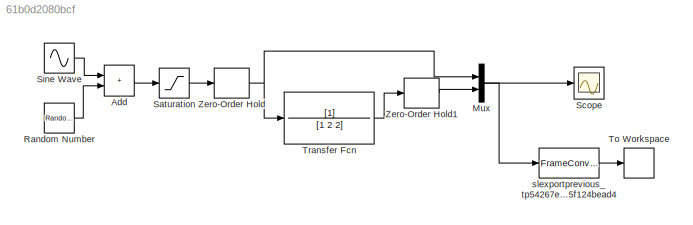
MODEL slx_61b0d2080bcf
KIND model
BLOCK [Sum] Add
  IconShape = rectangular
  Ports = [2, 1]
BLOCK [Mux] Mux
  DisplayOption = bar
  Inputs = 2
  Ports = [2, 1]
BLOCK [RandomNumber] Random Number
  SampleTime = 0.1
  Variance = 0.1
BLOCK [Saturate] Saturation
  LowerLimit = -5
  UpperLimit = 5
BLOCK [Scope] Scope
  DataFormat = StructureWithTime
  Decimation = 1
  Floating = off
  Grid = on
  LimitDataPoints = off
  MaxDataPoints = 5000
  NumInputPorts = 1
  Ports = [1]
  SampleInput = off
  SampleTime = -1
  SaveName = ScopeData
  SaveToWorkspace = off
  ShowLegends = off
  TickLabels = OneTimeTick
  TimeRange = auto
  YMax = 6.03775
  YMin = -6.132
  ZoomMode = on
BLOCK [Sin] Sine Wave
  Amplitude = 4
  Frequency = 0.025
  Ports = [0, 1]
  SampleTime = 0.1
BLOCK [ToWorkspace] To Workspace
  FixptAsFi = on
  MaxDataPoints = inf
  Ports = [1]
  SampleTime = -1
  VariableName = y
BLOCK [TransferFcn] Transfer Fcn
  Denominator = [1 2 2]
BLOCK [ZeroOrderHold] Zero-Order Hold
  SampleTime = -1
BLOCK [ZeroOrderHold] Zero-Order Hold1
  SampleTime = -1
BLOCK [FrameConversion] slexportprevious_tp54267e93_7e3a_449c_9220_f45f124bead4
  OutFrame = Sample-based
  Ports = [1, 1]
LINE Add:1 -> Saturation:1
NET Mux:1 -> Scope:1, slexportprevious_tp54267e93_7e3a_449c_9220_f45f124bead4:1
LINE Random Number:1 -> Add:2
LINE Saturation:1 -> Zero-Order Hold:1
LINE Sine Wave:1 -> Add:1
LINE Transfer Fcn:1 -> Zero-Order Hold1:1
LINE Zero-Order Hold1:1 -> Mux:2
NET Zero-Order Hold:1 -> Mux:1, Transfer Fcn:1
LINE slexportprevious_tp54267e93_7e3a_449c_9220_f45f124bead4:1 -> To Workspace:1
note: NET lines group one-source signal fan-out (src -> all destinations, sorted); 1:1 wires keep LINE
